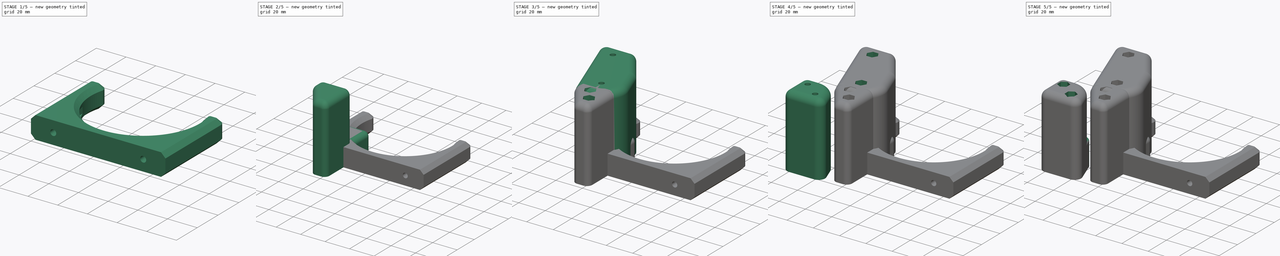
[diagram: build sequence overview — one tinted view per stage of 5, left to right]
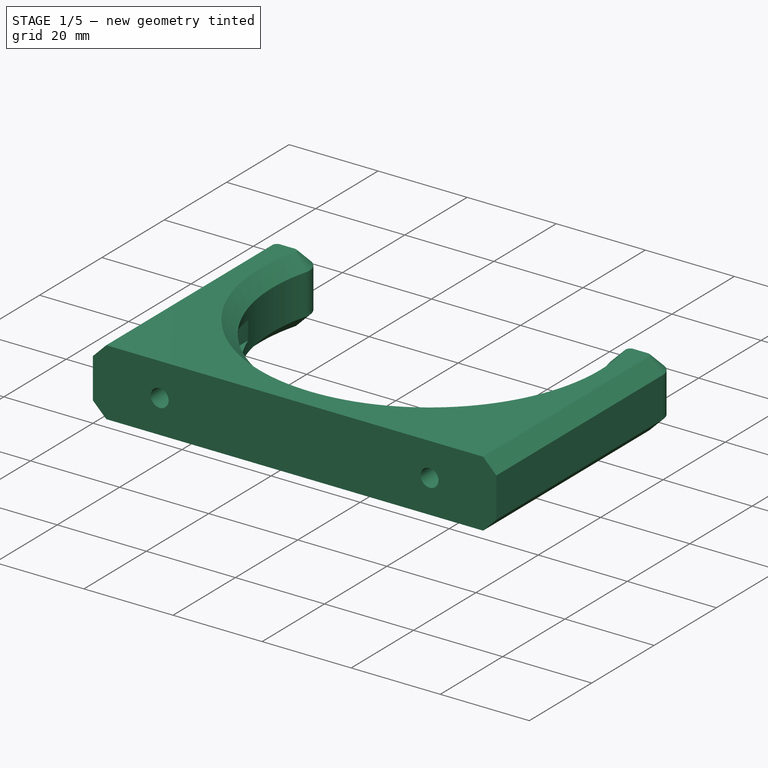
[diagram: stage 1 of 5 — iso view after this stage's code; geometry added in this stage tinted green]
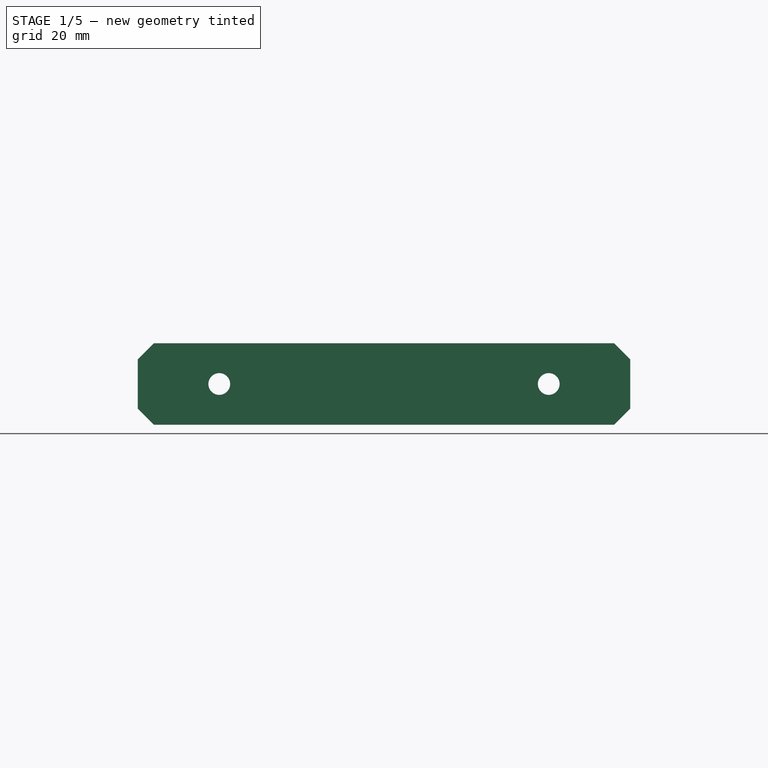
[diagram: stage 1 of 5 — front view after this stage's code; geometry added in this stage tinted green]
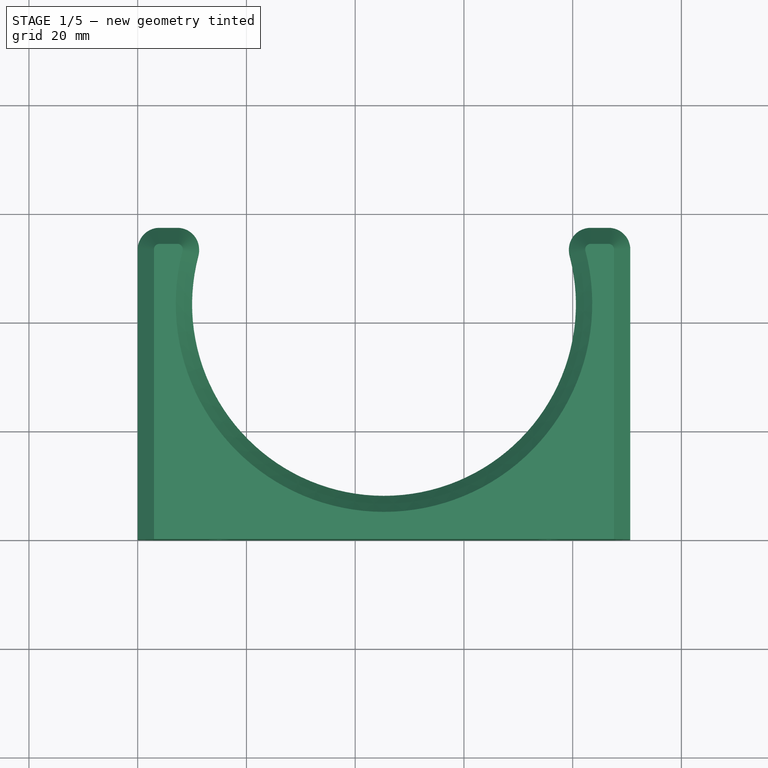
[diagram: stage 1 of 5 — top view after this stage's code; geometry added in this stage tinted green]
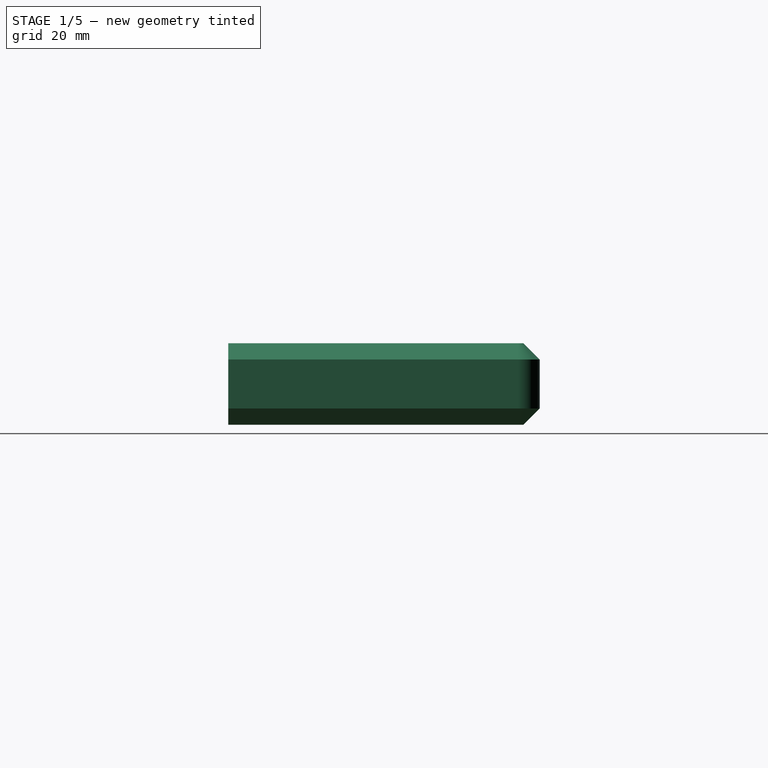
[diagram: stage 1 of 5 — right view after this stage's code; geometry added in this stage tinted green]
FCSTD DOCUMENT  (FreeCAD 0.21R33771 (Git))
Label: Hilti TE 5 Inlay
License: All rights reserved
LicenseURL: https://en.wikipedia.org/wiki/All_rights_reserved
objects: Sketcher::SketchObject×15, PartDesign::Fillet×9, PartDesign::Pocket×6, PartDesign::Pad×5, PartDesign::Body×5, PartDesign::Hole×4, Spreadsheet::Sheet×1, PartDesign::Chamfer×1
note: 70 computed .brp shape members not serialized (recipe doc carries the construction recipe); baked Part::Feature solids carry a one-line shape summary decoded from their .brp

FEATURE [PartDesign::Body] Body003  label="Top Body"
  Group = -> [Sketch008,Pad003,Sketch009,Pocket003,Sketch010,Sketch011,Fillet005,Fillet006,Fillet007,Hole002,Pocket004]
  Origin = -> Origin003
  Tip = -> Pocket004
FEATURE [Sketcher::SketchObject] Sketch012
  FullyConstrained = true
  MapMode = 5
  Support = -> [XY_Plane004]
  expr: Constraints[9] = <<data>>.dia
  sketch-geometry (16):
    g0: LineSegment StartX=0 StartY=0 StartZ=0 EndX=90.6 EndY=0 EndZ=0
    g1: LineSegment StartX=90.6 StartY=0 StartZ=0 EndX=90.6 EndY=57.3 EndZ=0
    g2: LineSegment StartX=90.6 StartY=57.3 StartZ=0 EndX=77.7051 EndY=57.3 EndZ=0
    g3: LineSegment StartX=0 StartY=57.3 StartZ=0 EndX=0 EndY=0 EndZ=0
    g4: ArcOfCircle CenterX=45.3 CenterY=43.3 CenterZ=0 NormalX=0 NormalY=0 NormalZ=1 AngleXU=0 Radius=35.3 StartAngle=2.73378 EndAngle=6.691
    g5: LineSegment StartX=45.3 StartY=43.3 StartZ=0 EndX=45.3 EndY=8 EndZ=0
    g6: LineSegment StartX=45.3 StartY=8 StartZ=0 EndX=45.3 EndY=0 EndZ=0
    g7: LineSegment StartX=45.3 StartY=43.3 StartZ=0 EndX=10 EndY=43.3 EndZ=0
    g8: LineSegment StartX=10 StartY=43.3 StartZ=0 EndX=0 EndY=43.3 EndZ=0
    g9: LineSegment StartX=45.3 StartY=43.3 StartZ=0 EndX=80.6 EndY=43.3 EndZ=0
    g10: LineSegment StartX=80.6 StartY=43.3 StartZ=0 EndX=90.6 EndY=43.3 EndZ=0
    g11: LineSegment StartX=0 StartY=0 StartZ=0 EndX=0 EndY=-8 EndZ=0
    g12: LineSegment StartX=45.3 StartY=0 StartZ=0 EndX=21.7543 EndY=0 EndZ=0
    g13: LineSegment StartX=45.3 StartY=0 StartZ=0 EndX=68.8457 EndY=0 EndZ=0
    g14: LineSegment StartX=68.8457 StartY=0 StartZ=0 EndX=68.8457 EndY=17 EndZ=0
    g15: LineSegment StartX=12.8949 StartY=57.3 StartZ=0 EndX=0 EndY=57.3 EndZ=0
  constraints (48):
    c: Coincident(g0,g1)
    c: Coincident(g1,g2)
    c: Coincident(g15,g3)
    c: Coincident(g3,g0)
    c: Horizontal(g0)
    c: Horizontal(g2)
    c: Vertical(g1)
    c: Vertical(g3)
    c: Coincident(g0,g-1)
    c: Diameter(g4) = 70.6
    c: Coincident(g5,g4)
    c: PointOnObject(g5,g4)
    c: Vertical(g5)
    c: Coincident(g5,g6)
    c: PointOnObject(g6,g0)
    c: Vertical(g6)
    c: Coincident(g7,g4)
    c: PointOnObject(g7,g4)
    c: Horizontal(g7)
    c: Coincident(g7,g8)
    c: PointOnObject(g8,g3)
    c: Coincident(g9,g4)
    c: PointOnObject(g9,g4)
    c: Horizontal(g9)
    c: Coincident(g9,g10)
    c: PointOnObject(g10,g1)
    c: Horizontal(g8)
    c: Horizontal(g10)
    c: Equal(g10,g8)
    c: Coincident(g11,g0)
    c: DistanceY(g11,g11) = 8
    c: Vertical(g11)
    c: Coincident(g12,g6)
    c: Coincident(g13,g6)
    c: Equal(g12,g13)
    c: Horizontal(g12)
    c: Horizontal(g13)
    c: Coincident(g14,g13)
    c: PointOnObject(g14,g4)
    c: Vertical(g14)
    c: DistanceY(g11,g14) = 25
    c: DistanceX(g8,g8) = 10
    c: DistanceY(g6,g6) = 8
    c: DistanceY(g10,g1) = 14
    c: Coincident(g2,g4)
    c: Coincident(g15,g4)
    c: Horizontal(g15)
    c: Equal(g3,g1)
FEATURE [PartDesign::Pad] Pad004
  Direction = (0,0,1)
  Length = 15
  Length2 = 10
  Profile = -> Sketch012
  ReferenceAxis = -> Sketch012 [N_Axis]
  Type = 0
FEATURE [Sketcher::SketchObject] Sketch013
  ExternalGeometry = -> [Pad004]
  FullyConstrained = true
  MapMode = 5
  Placement = pos=(0,0,0) rot=(1,0,0;1.5708rad)
  Support = -> [Pad004]
  sketch-geometry (7):
    g0: Circle CenterX=15 CenterY=7.5 CenterZ=0 NormalX=0 NormalY=0 NormalZ=1 AngleXU=0 Radius=2
    g1: Circle CenterX=75.6 CenterY=7.5 CenterZ=0 NormalX=0 NormalY=0 NormalZ=1 AngleXU=0 Radius=2
    g2: LineSegment StartX=-1e-16 StartY=7.5 StartZ=0 EndX=15 EndY=7.5 EndZ=0
    g3: LineSegment StartX=15 StartY=7.5 StartZ=0 EndX=75.6 EndY=7.5 EndZ=0
    g4: LineSegment StartX=75.6 StartY=7.5 StartZ=0 EndX=90.6 EndY=7.5 EndZ=0
    g5: LineSegment StartX=90.6 StartY=0 StartZ=0 EndX=90.6 EndY=7.5 EndZ=0
    g6: LineSegment StartX=90.6 StartY=7.5 StartZ=0 EndX=90.6 EndY=15 EndZ=0
  constraints (18):
    c: Equal(g0,g1)
    c: PointOnObject(g2,g-2)
    c: Coincident(g2,g0)
    c: Horizontal(g2)
    c: Coincident(g2,g3)
    c: Coincident(g3,g1)
    c: Horizontal(g3)
    c: Coincident(g3,g4)
    c: PointOnObject(g4,g-3)
    c: Horizontal(g4)
    c: Equal(g2,g4)
    c: Coincident(g-3,g5)
    c: Coincident(g5,g6)
    c: Coincident(g6,g-3)
    c: Coincident(g5,g4)
    c: Equal(g6,g5)
    c: Diameter(g0) = 4
    c: DistanceX(g2,g2) = 15
FEATURE [PartDesign::Fillet] Fillet008
  Base = -> Pad004 [Edge14,Edge11,Edge8,Edge5]
  BaseFeature = -> Pad004
  Radius = 4
  SupportTransform = false
  UseAllEdges = false
FEATURE [PartDesign::Chamfer] Chamfer
  Angle = 45
  Base = -> Fillet008 [Edge19,Edge21,Edge23,Edge24,Edge22,Edge20,Edge18,Edge15,Edge4,Edge1,Edge5,Edge7,Edge9,Edge11,Edge13,Edge12,Edge10,Edge8]
  BaseFeature = -> Fillet008
  ChamferType = 0
  FlipDirection = false
  Size = 3
  Size2 = 1
  SupportTransform = false
  UseAllEdges = false
FEATURE [PartDesign::Hole] Hole003
  BaseFeature = -> Chamfer
  CustomThreadClearance = 0
  Depth = 35
  DepthType = 0
  Diameter = 4
  DrillForDepth = false
  DrillPoint = 1
  DrillPointAngle = 118
  HoleCutCountersinkAngle = 90
  HoleCutCustomValues = false
  HoleCutDepth = 0
  HoleCutDiameter = 6.1
  HoleCutType = 0
  ModelThread = false
  Profile = -> Sketch013
  Tapered = false
  TaperedAngle = 90
  ThreadClass = 0
  ThreadDepth = 35
  ThreadDepthType = 0
  ThreadDirection = 0
  ThreadFit = 0
  ThreadSize = 0
  ThreadType = 0
  Threaded = false
  UseCustomThreadClearance = false
FEATURE [Sketcher::SketchObject] Sketch014
  ExternalGeometry = -> [Hole003]
  FullyConstrained = true
  MapMode = 5
  Placement = pos=(0,0,0) rot=(1,0,0;1.5708rad)
  Support = -> [XZ_Plane004]
  expr: Constraints[39] = <<data>>.hex
  sketch-geometry (14):
    g0: LineSegment StartX=18.6 StartY=9.57846 StartZ=0 EndX=15 EndY=11.6569 EndZ=0
    g1: LineSegment StartX=15 StartY=11.6569 StartZ=0 EndX=11.4 EndY=9.57846 EndZ=0
    g2: LineSegment StartX=11.4 StartY=9.57846 StartZ=0 EndX=11.4 EndY=5.42154 EndZ=0
    g3: LineSegment StartX=11.4 StartY=5.42154 StartZ=0 EndX=15 EndY=3.34308 EndZ=0
    g4: LineSegment StartX=15 StartY=3.34308 StartZ=0 EndX=18.6 EndY=5.42154 EndZ=0
    g5: LineSegment StartX=18.6 StartY=5.42154 StartZ=0 EndX=18.6 EndY=9.57846 EndZ=0
    g6: Circle CenterX=15 CenterY=7.5 CenterZ=0 NormalX=0 NormalY=0 NormalZ=1 AngleXU=0 Radius=4.15692
    g7: LineSegment StartX=79.2 StartY=9.57846 StartZ=0 EndX=75.6 EndY=11.6569 EndZ=0
    g8: LineSegment StartX=75.6 StartY=11.6569 StartZ=0 EndX=72 EndY=9.57846 EndZ=0
    g9: LineSegment StartX=72 StartY=9.57846 StartZ=0 EndX=72 EndY=5.42154 EndZ=0
    g10: LineSegment StartX=72 StartY=5.42154 StartZ=0 EndX=75.6 EndY=3.34308 EndZ=0
    g11: LineSegment StartX=75.6 StartY=3.34308 StartZ=0 EndX=79.2 EndY=5.42154 EndZ=0
    g12: LineSegment StartX=79.2 StartY=5.42154 StartZ=0 EndX=79.2 EndY=9.57846 EndZ=0
    g13: Circle CenterX=75.6 CenterY=7.5 CenterZ=0 NormalX=0 NormalY=0 NormalZ=1 AngleXU=0 Radius=4.15692
  constraints (32):
    c: Coincident(g0,g1)
    c: Coincident(g1,g2)
    c: Coincident(g2,g3)
    c: Coincident(g3,g4)
    c: Coincident(g4,g5)
    c: Coincident(g5,g0)
    c: Equal(g0, g1-g5) x5
    c: PointOnObject(g0,g6)
    c: PointOnObject(g1,g6)
    c: PointOnObject(g2,g6)
    c: PointOnObject(g3,g6)
    c: PointOnObject(g4,g6)
    c: PointOnObject(g5,g6)
    c: Coincident(g6,g-4)
    c: Coincident(g7,g8)
    c: Coincident(g8,g9)
    c: Coincident(g9,g10)
    c: Coincident(g10,g11)
    c: Coincident(g11,g12)
    c: Coincident(g12,g7)
    c: Equal(g7, g8-g12) x5
    c: PointOnObject(g7,g13)
    c: PointOnObject(g8,g13)
    c: PointOnObject(g9,g13)
    c: PointOnObject(g10,g13)
    c: PointOnObject(g11,g13)
    c: PointOnObject(g12,g13)
    c: Coincident(g13,g-3)
    c: Equal(g1,g8)
    c: Vertical(g2)
    c: Vertical(g9)
    c: DistanceX(g8,g7) = 7.2
FEATURE [PartDesign::Pocket] Pocket005
  BaseFeature = -> Hole003
  Direction = (0,1,2e-16)
  Length = 35
  Length2 = -7
  Profile = -> Sketch014
  ReferenceAxis = -> Sketch014 [N_Axis]
  Type = 4
FEATURE [PartDesign::Body] Body004  label="Clamp Body"
  Group = -> [Sketch012,Pad004,Sketch013,Fillet008,Chamfer,Hole003,Sketch014,Pocket005]
  Origin = -> Origin004
  Tip = -> Pocket005
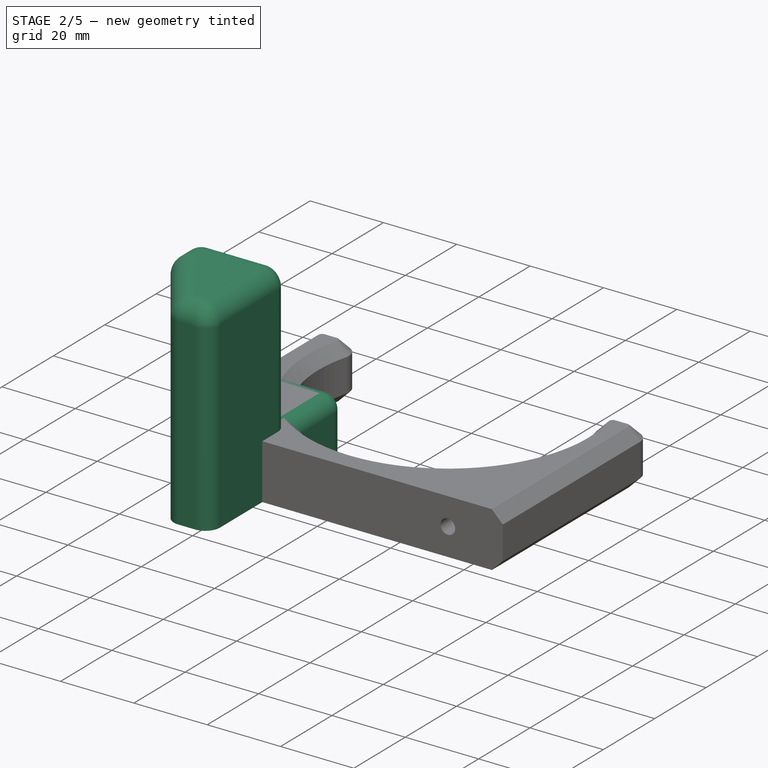
[diagram: stage 2 of 5 — iso view after this stage's code; geometry added in this stage tinted green]
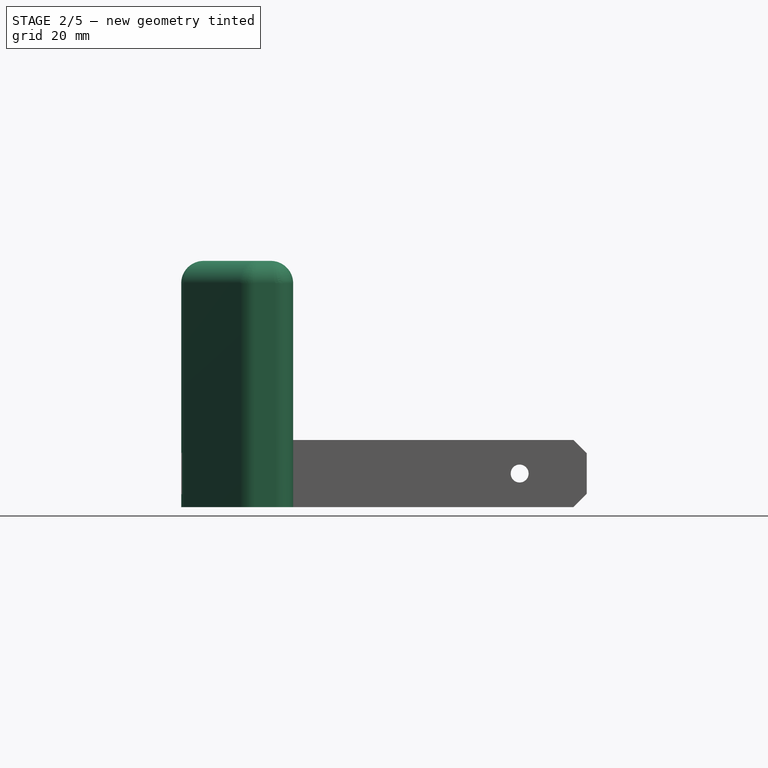
[diagram: stage 2 of 5 — front view after this stage's code; geometry added in this stage tinted green]
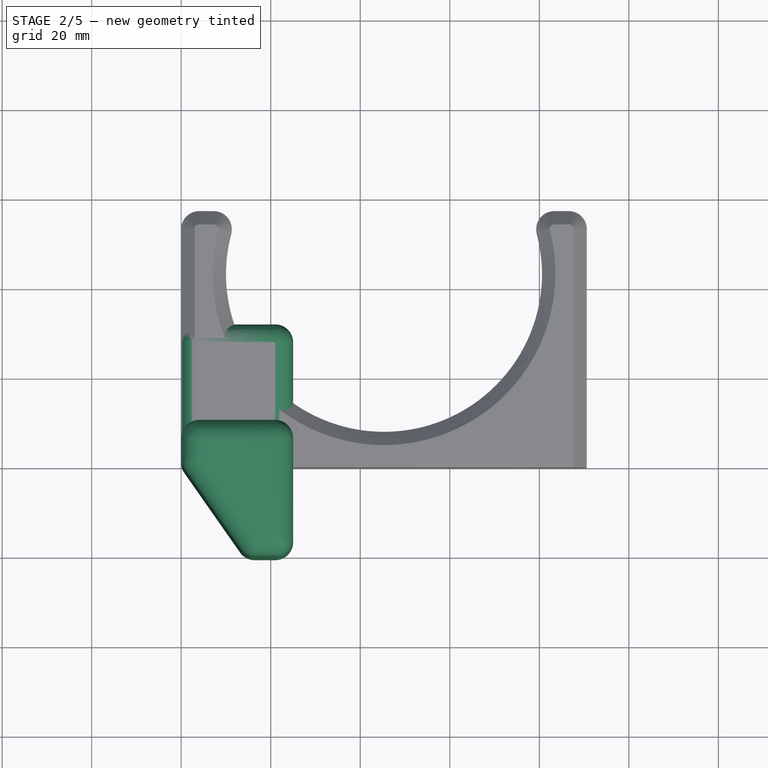
[diagram: stage 2 of 5 — top view after this stage's code; geometry added in this stage tinted green]
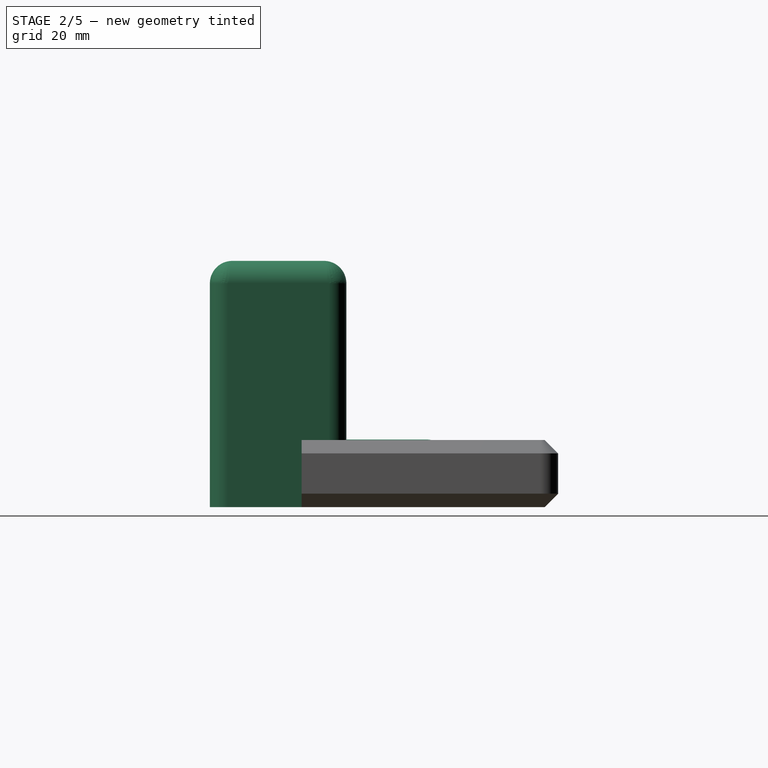
[diagram: stage 2 of 5 — right view after this stage's code; geometry added in this stage tinted green]
FEATURE [PartDesign::Body] Body001  label="Inner Body"
  Group = -> [Sketch001,Pad001,Fillet002,Sketch006,Pocket001,Sketch007,Pocket002]
  Origin = -> Origin001
  Tip = -> Pocket002
FEATURE [Sketcher::SketchObject] Sketch008
  FullyConstrained = true
  MapMode = 5
  Support = -> [XY_Plane003]
  sketch-geometry (5):
    g0: LineSegment StartX=0 StartY=0 StartZ=0 EndX=0 EndY=32 EndZ=0
    g1: LineSegment StartX=0 StartY=32 StartZ=0 EndX=25 EndY=32 EndZ=0
    g2: LineSegment StartX=25 StartY=32 StartZ=0 EndX=25 EndY=-20.4788 EndZ=0
    g3: LineSegment StartX=25 StartY=-20.4788 StartZ=0 EndX=14.3394 EndY=-20.4788 EndZ=0
    g4: LineSegment StartX=14.3394 StartY=-20.4788 StartZ=0 EndX=0 EndY=0 EndZ=0
  constraints (14):
    c: Coincident(g-1,g0)
    c: PointOnObject(g0,g-2)
    c: Coincident(g0,g1)
    c: Horizontal(g1)
    c: Coincident(g1,g2)
    c: Vertical(g2)
    c: Coincident(g2,g3)
    c: Horizontal(g3)
    c: Coincident(g3,g4)
    c: Coincident(g4,g0)
    c: DistanceY(g0,g0) = 32
    c: DistanceX(g1,g1) = 25
    c: Angle(g4,g1) = 0.959931
    c: Distance(g4) = 25
FEATURE [PartDesign::Pad] Pad003
  Direction = (0,0,1)
  Length = 55
  Length2 = 10
  Profile = -> Sketch008
  ReferenceAxis = -> Sketch008 [N_Axis]
  Type = 0
  expr: Length = <<data>>.height
FEATURE [Sketcher::SketchObject] Sketch009
  FullyConstrained = true
  MapMode = 5
  Support = -> [XY_Plane003]
  sketch-geometry (4):
    g0: LineSegment StartX=-10 StartY=10 StartZ=0 EndX=30 EndY=10 EndZ=0
    g1: LineSegment StartX=30 StartY=10 StartZ=0 EndX=30 EndY=50 EndZ=0
    g2: LineSegment StartX=30 StartY=50 StartZ=0 EndX=-10 EndY=50 EndZ=0
    g3: LineSegment StartX=-10 StartY=50 StartZ=0 EndX=-10 EndY=10 EndZ=0
  constraints (12):
    c: Coincident(g0,g1)
    c: Coincident(g1,g2)
    c: Coincident(g2,g3)
    c: Coincident(g3,g0)
    c: Horizontal(g0)
    c: Horizontal(g2)
    c: Vertical(g1)
    c: Vertical(g3)
    c: DistanceY(g-1,g0) = 10
    c: DistanceX(g0,g-1) = 10
    c: DistanceX(g0,g0) = 40
    c: Equal(g1,g0)
FEATURE [PartDesign::Pocket] Pocket003
  BaseFeature = -> Pad003
  Direction = (0,0,-1)
  Length = 82.5
  Length2 = -15.1
  Profile = -> Sketch009
  ReferenceAxis = -> Sketch009 [N_Axis]
  Reversed = true
  Type = 4
  expr: Length = <<data>>.height * 1.5
  expr: Length2 = -(59.6 - 44.5)
FEATURE [Sketcher::SketchObject] Sketch010
  FullyConstrained = true
  MapMode = 5
  Support = -> [XY_Plane003]
  sketch-geometry (2):
    g0: Circle CenterX=18 CenterY=-10 CenterZ=0 NormalX=0 NormalY=0 NormalZ=1 AngleXU=0 Radius=2
    g1: Circle CenterX=12 CenterY=0 CenterZ=0 NormalX=0 NormalY=0 NormalZ=1 AngleXU=0 Radius=2
  constraints (6):
    c: Equal(g1,g0)
    c: Diameter(g0) = 4
    c: DistanceY(g1,g-1) = 0
    c: DistanceX(g-1,g0) = 18
    c: DistanceX(g-1,g1) = 12
    c: DistanceY(g0,g-1) = 10
FEATURE [PartDesign::Fillet] Fillet005
  Base = -> Pocket003 [Face6]
  BaseFeature = -> Pocket003
  Radius = 5
  SupportTransform = false
  UseAllEdges = false
FEATURE [PartDesign::Fillet] Fillet006
  Base = -> Fillet005 [Edge5,Edge15,Edge24,Edge9,Edge19,Edge1,Edge4]
  BaseFeature = -> Fillet005
  Radius = 4
  SupportTransform = false
  UseAllEdges = false
FEATURE [PartDesign::Fillet] Fillet007
  Base = -> Fillet006 [Edge7,Edge25,Edge26,Edge27,Edge29,Vertex6,Edge5,Edge31]
  BaseFeature = -> Fillet006
  Radius = 4
  SupportTransform = false
  UseAllEdges = false
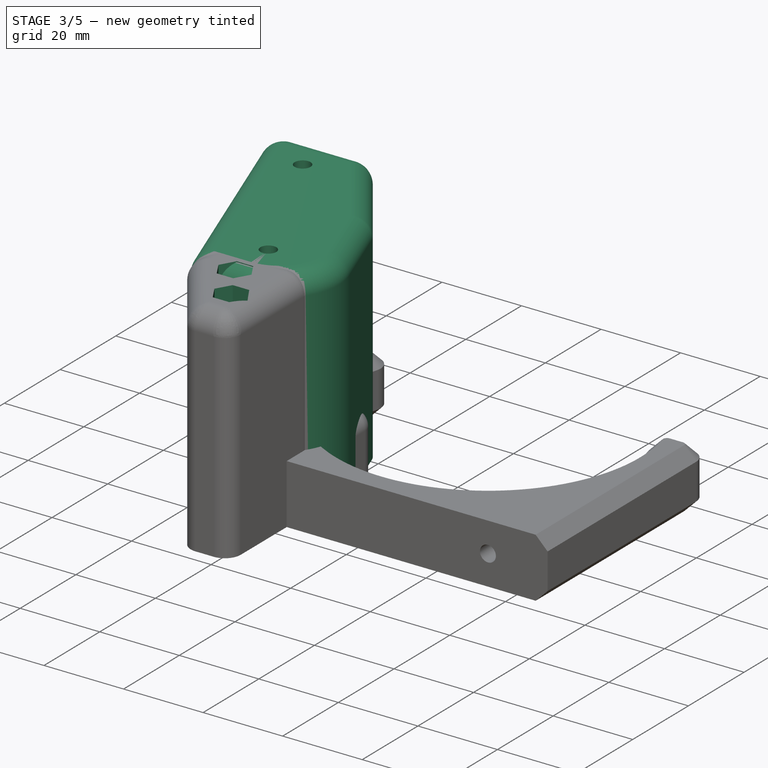
[diagram: stage 3 of 5 — iso view after this stage's code; geometry added in this stage tinted green]
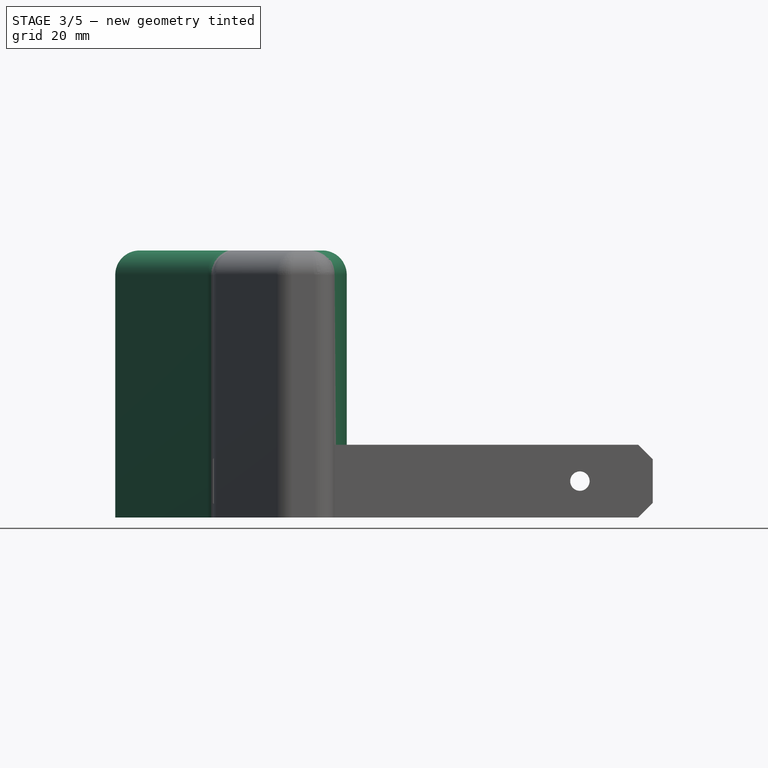
[diagram: stage 3 of 5 — front view after this stage's code; geometry added in this stage tinted green]
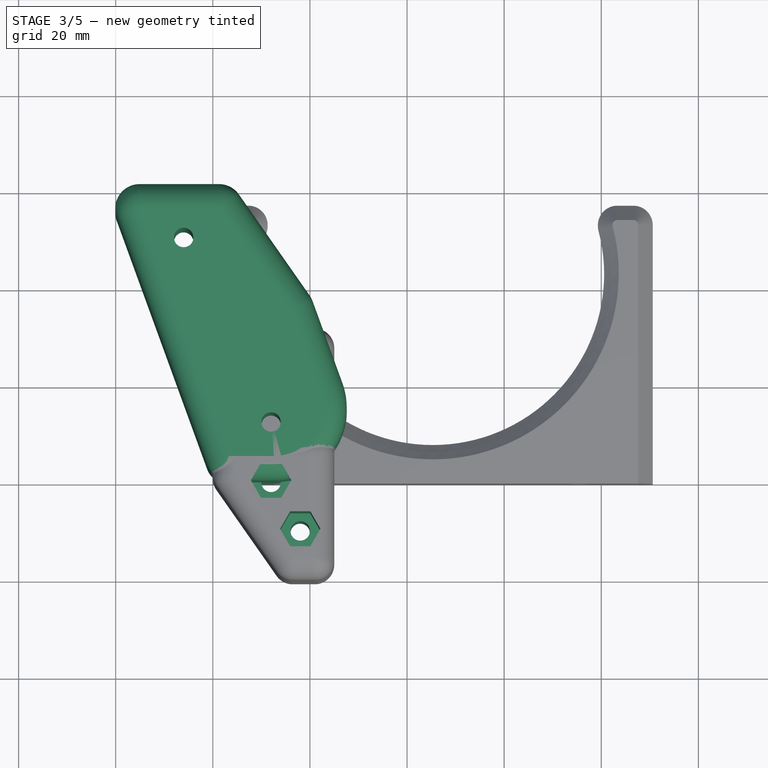
[diagram: stage 3 of 5 — top view after this stage's code; geometry added in this stage tinted green]
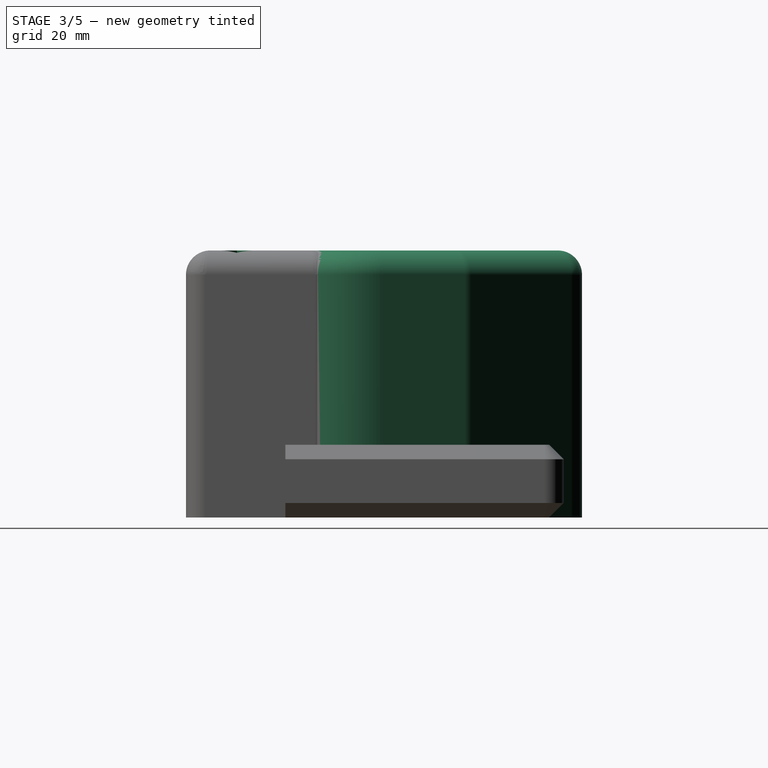
[diagram: stage 3 of 5 — right view after this stage's code; geometry added in this stage tinted green]
FEATURE [Sketcher::SketchObject] Sketch001
  FullyConstrained = true
  MapMode = 5
  Support = -> [XY_Plane001]
  sketch-geometry (7):
    g0: LineSegment StartX=0 StartY=0 StartZ=0 EndX=-22.2313 EndY=61.08 EndZ=0
    g1: LineSegment StartX=-22.2313 StartY=61.08 StartZ=0 EndX=3.8697 EndY=61.08 EndZ=0
    g2: LineSegment StartX=3.8697 StartY=61.08 StartZ=0 EndX=20.3192 EndY=37.5877 EndZ=0
    g3: LineSegment StartX=20.3192 StartY=37.5877 StartZ=0 EndX=26.6732 EndY=20.1303 EndZ=0
    g4: LineSegment StartX=12.5778 StartY=9.334e-13 StartZ=0 EndX=0 EndY=0 EndZ=0
    g5: ArcOfCircle CenterX=12.5778 CenterY=15 CenterZ=0 NormalX=0 NormalY=0 NormalZ=1 AngleXU=0 Radius=15 StartAngle=4.71239 EndAngle=6.63225
    g6: GeomPoint X=34 Y=0 Z=0
  constraints (18):
    c: Coincident(g-1,g0)
    c: Coincident(g0,g1)
    c: Horizontal(g1)
    c: Coincident(g1,g2)
    c: Coincident(g2,g3)
    c: PointOnObject(g6,g-1)
    c: Coincident(g4,g0)
    c: Angle(g4,g0) = 1.91986
    c: DistanceX(g4,g6) = 34
    c: Distance(g3,g6) = 40
    c: Distance(g0) = 65
    c: Parallel(g0,g3)
    c: Angle(g1,g2) = 2.18166
    c: PointOnObject(g6,g3)
    c: PointOnObject(g6,g4)
    c: Tangent(g3,g5) = 1.5708
    c: Tangent(g4,g5) = 1.5708
    c: Radius(g5) = 15
FEATURE [Spreadsheet::Sheet] Spreadsheet  label="data"
  cells = A1='height; B1(height)==55 mm; A2='pad; B2(pad)==51.2 mm - 32 mm; A3='hex; B3(hex)==7.2 mm; A4='dia; B4(dia)==70.6 mm
FEATURE [PartDesign::Pad] Pad001
  Direction = (0,0,1)
  Length = 55
  Length2 = 10
  Profile = -> Sketch001
  ReferenceAxis = -> Sketch001 [N_Axis]
  Type = 0
  expr: Length = <<data>>.height
FEATURE [PartDesign::Fillet] Fillet002
  Base = -> Pad001 [Edge8,Edge1,Edge5,Edge2,Face8]
  BaseFeature = -> Pad001
  Radius = 5
  SupportTransform = false
  UseAllEdges = false
FEATURE [PartDesign::Body] Body  label="Left Body"
  Group = -> [Sketch,Pad,Fillet,Fillet001,Sketch004,Hole001,Sketch005,Pocket]
  Origin = -> Origin
  Tip = -> Pocket
FEATURE [Sketcher::SketchObject] Sketch006
  FullyConstrained = true
  MapMode = 5
  Support = -> [XY_Plane001]
  sketch-geometry (2):
    g0: Circle CenterX=12 CenterY=12 CenterZ=0 NormalX=0 NormalY=0 NormalZ=1 AngleXU=0 Radius=2
    g1: Circle CenterX=-6 CenterY=50 CenterZ=0 NormalX=0 NormalY=0 NormalZ=1 AngleXU=0 Radius=2
  constraints (6):
    c: Equal(g1,g0)
    c: Diameter(g0) = 4
    c: DistanceX(g1,g-1) = 6
    c: DistanceX(g-1,g0) = 12
    c: DistanceY(g-1,g0) = 12
    c: DistanceY(g-1,g1) = 50
FEATURE [PartDesign::Pocket] Pocket001
  BaseFeature = -> Fillet002
  Direction = (0,0,-1)
  Length = 5
  Length2 = 5
  Profile = -> Sketch006
  ReferenceAxis = -> Sketch006 [N_Axis]
  Reversed = true
  Type = 1
FEATURE [PartDesign::Hole] Hole002
  BaseFeature = -> Fillet007
  CustomThreadClearance = 0
  Depth = 161.651
  DepthType = 1
  Diameter = 4
  DrillForDepth = false
  DrillPoint = 1
  DrillPointAngle = 118
  HoleCutCountersinkAngle = 90
  HoleCutCustomValues = false
  HoleCutDepth = 0
  HoleCutDiameter = 6.1
  HoleCutType = 0
  ModelThread = false
  Profile = -> Sketch010
  Reversed = true
  Tapered = false
  TaperedAngle = 90
  ThreadClass = 0
  ThreadDepth = 161.651
  ThreadDepthType = 0
  ThreadDirection = 0
  ThreadFit = 0
  ThreadSize = 0
  ThreadType = 0
  Threaded = false
  UseCustomThreadClearance = false
FEATURE [Sketcher::SketchObject] Sketch011
  ExternalGeometry = -> [Hole002]
  FullyConstrained = true
  MapMode = 5
  Support = -> [XY_Plane003]
  expr: Constraints[37] = <<data>>.hex
  sketch-geometry (14):
    g0: LineSegment StartX=20.0785 StartY=-6.4 StartZ=0 EndX=15.9215 EndY=-6.4 EndZ=0
    g1: LineSegment StartX=15.9215 StartY=-6.4 StartZ=0 EndX=13.8431 EndY=-10 EndZ=0
    g2: LineSegment StartX=13.8431 StartY=-10 StartZ=0 EndX=15.9215 EndY=-13.6 EndZ=0
    g3: LineSegment StartX=15.9215 StartY=-13.6 StartZ=0 EndX=20.0785 EndY=-13.6 EndZ=0
    g4: LineSegment StartX=20.0785 StartY=-13.6 StartZ=0 EndX=22.1569 EndY=-10 EndZ=0
    g5: LineSegment StartX=22.1569 StartY=-10 StartZ=0 EndX=20.0785 EndY=-6.4 EndZ=0
    g6: Circle CenterX=18 CenterY=-10 CenterZ=0 NormalX=0 NormalY=0 NormalZ=1 AngleXU=0 Radius=4.15692
    g7: LineSegment StartX=14.0785 StartY=3.6 StartZ=0 EndX=9.92154 EndY=3.6 EndZ=0
    g8: LineSegment StartX=9.92154 StartY=3.6 StartZ=0 EndX=7.84308 EndY=5.644e-13 EndZ=0
    g9: LineSegment StartX=7.84308 StartY=5.644e-13 StartZ=0 EndX=9.92154 EndY=-3.6 EndZ=0
    g10: LineSegment StartX=9.92154 StartY=-3.6 StartZ=0 EndX=14.0785 EndY=-3.6 EndZ=0
    g11: LineSegment StartX=14.0785 StartY=-3.6 StartZ=0 EndX=16.1569 EndY=5.635e-13 EndZ=0
    g12: LineSegment StartX=16.1569 StartY=5.635e-13 StartZ=0 EndX=14.0785 EndY=3.6 EndZ=0
    g13: Circle CenterX=12 CenterY=0 CenterZ=0 NormalX=0 NormalY=0 NormalZ=1 AngleXU=0 Radius=4.15692
  constraints (32):
    c: Coincident(g0,g1)
    c: Coincident(g1,g2)
    c: Coincident(g2,g3)
    c: Coincident(g3,g4)
    c: Coincident(g4,g5)
    c: Coincident(g5,g0)
    c: Equal(g0, g1-g5) x5
    c: PointOnObject(g0,g6)
    c: PointOnObject(g1,g6)
    c: PointOnObject(g2,g6)
    c: PointOnObject(g3,g6)
    c: PointOnObject(g4,g6)
    c: PointOnObject(g5,g6)
    c: Coincident(g7,g8)
    c: Coincident(g8,g9)
    c: Coincident(g9,g10)
    c: Coincident(g10,g11)
    c: Coincident(g11,g12)
    c: Coincident(g12,g7)
    c: Equal(g7, g8-g12) x5
    c: PointOnObject(g7,g13)
    c: PointOnObject(g8,g13)
    c: PointOnObject(g9,g13)
    c: PointOnObject(g10,g13)
    c: PointOnObject(g11,g13)
    c: PointOnObject(g12,g13)
    c: Horizontal(g3)
    c: Horizontal(g10)
    c: Equal(g10,g3)
    c: DistanceY(g3,g0) = 7.2
    c: Coincident(g6,g-3)
    c: Coincident(g13,g-4)
FEATURE [PartDesign::Pocket] Pocket004
  BaseFeature = -> Hole002
  Direction = (0,0,-1)
  Length = 60
  Length2 = -30
  Profile = -> Sketch011
  ReferenceAxis = -> Sketch011 [N_Axis]
  Reversed = true
  Type = 4
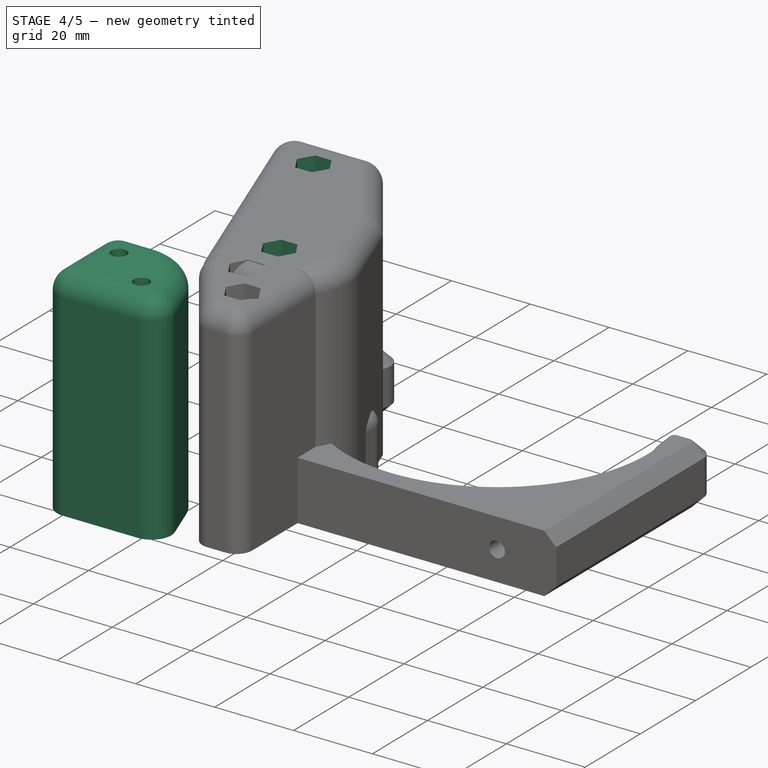
[diagram: stage 4 of 5 — iso view after this stage's code; geometry added in this stage tinted green]
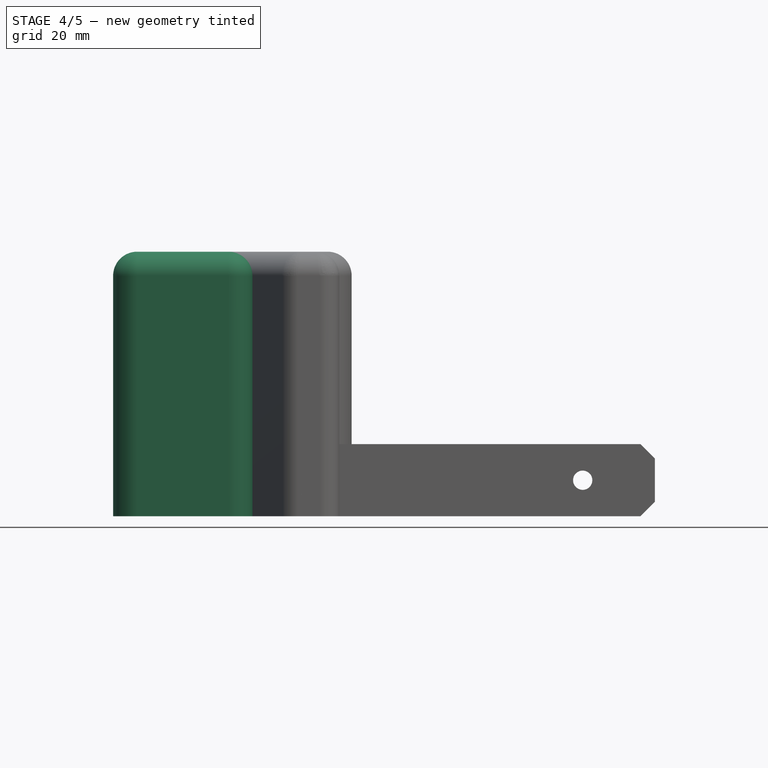
[diagram: stage 4 of 5 — front view after this stage's code; geometry added in this stage tinted green]
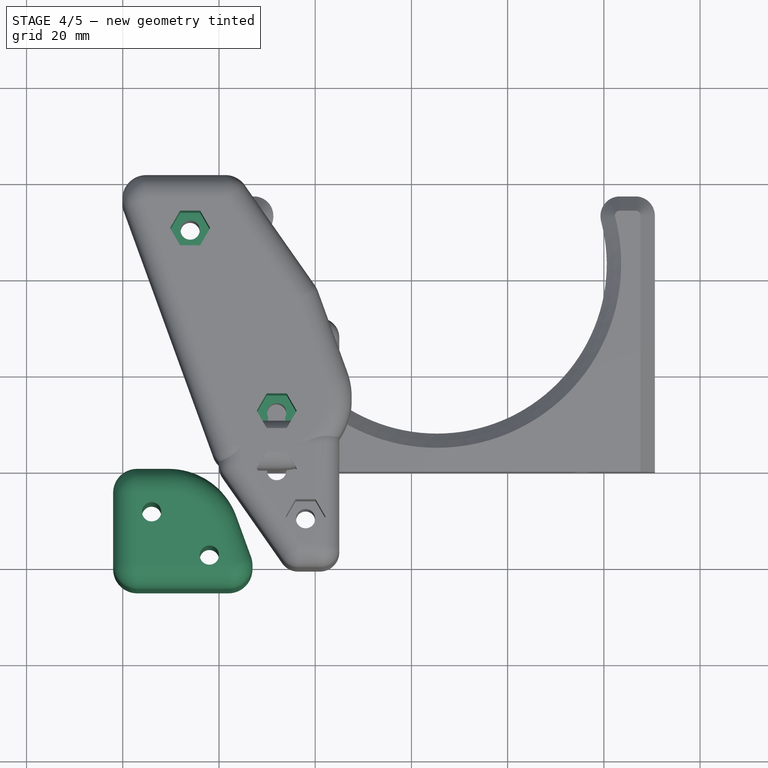
[diagram: stage 4 of 5 — top view after this stage's code; geometry added in this stage tinted green]
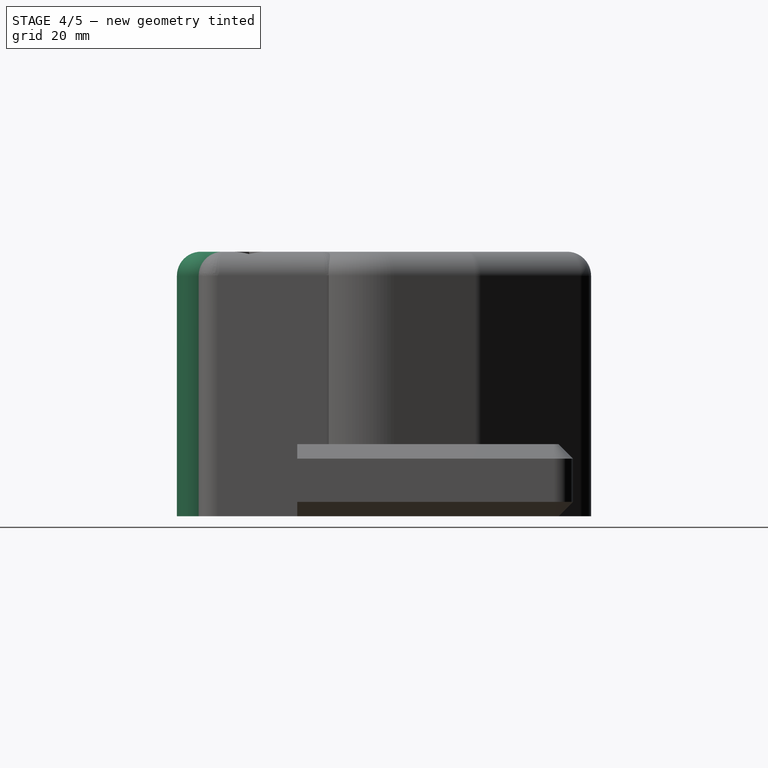
[diagram: stage 4 of 5 — right view after this stage's code; geometry added in this stage tinted green]
FEATURE [Sketcher::SketchObject] Sketch
  FullyConstrained = true
  MapMode = 5
  Support = -> [XY_Plane]
  sketch-geometry (6):
    g0: LineSegment StartX=-10.5031 StartY=-4.62e-14 StartZ=0 EndX=-22 EndY=0 EndZ=0
    g1: LineSegment StartX=3.59228 StartY=-9.8697 StartZ=0 EndX=9.09926 EndY=-25 EndZ=0
    g2: LineSegment StartX=-22 StartY=0 StartZ=0 EndX=-22 EndY=-25 EndZ=0
    g3: LineSegment StartX=-22 StartY=-25 StartZ=0 EndX=9.09926 EndY=-25 EndZ=0
    g4: ArcOfCircle CenterX=-10.5031 CenterY=-15 CenterZ=0 NormalX=0 NormalY=0 NormalZ=1 AngleXU=0 Radius=15 StartAngle=0.349066 EndAngle=1.5708
    g5: GeomPoint X=0 Y=0 Z=0
  constraints (15):
    c: Coincident(g5,g-1)
    c: PointOnObject(g0,g-1)
    c: Coincident(g2,g0)
    c: Vertical(g2)
    c: Coincident(g3,g1)
    c: Coincident(g3,g2)
    c: Horizontal(g3)
    c: DistanceX(g0,g5) = 22
    c: DistanceY(g2,g2) = 25
    c: PointOnObject(g5,g0)
    c: PointOnObject(g5,g1)
    c: Tangent(g0,g4) = -1.5708
    c: Tangent(g1,g4) = 1.5708
    c: Radius(g4) = 15
    c: Angle(g0,g1) = 1.91986
FEATURE [PartDesign::Pad] Pad
  Direction = (0,0,1)
  Length = 55
  Length2 = 10
  Profile = -> Sketch
  ReferenceAxis = -> Sketch [N_Axis]
  Type = 0
  expr: Length = <<data>>.height
FEATURE [PartDesign::Fillet] Fillet
  Base = -> Pad [Edge11,Edge8,Edge5]
  BaseFeature = -> Pad
  Radius = 5
  SupportTransform = false
  UseAllEdges = false
FEATURE [PartDesign::Fillet] Fillet001
  Base = -> Fillet [Face5]
  BaseFeature = -> Fillet
  Radius = 5
  SupportTransform = false
  UseAllEdges = false
FEATURE [PartDesign::Body] Body002  label="Pad Body"
  Group = -> [Sketch002,Pad002,Fillet003,Fillet004,Sketch003,Hole]
  Origin = -> Origin002
  Tip = -> Hole
FEATURE [Sketcher::SketchObject] Sketch004
  FullyConstrained = true
  MapMode = 5
  Support = -> [XY_Plane]
  sketch-geometry (2):
    g0: Circle CenterX=-2 CenterY=-18 CenterZ=0 NormalX=0 NormalY=0 NormalZ=1 AngleXU=0 Radius=2
    g1: Circle CenterX=-14 CenterY=-9 CenterZ=0 NormalX=0 NormalY=0 NormalZ=1 AngleXU=0 Radius=2
  constraints (6):
    c: Equal(g0,g1)
    c: Distance(g1,g0) = 15
    c: DistanceX(g0,g-1) = 2
    c: DistanceX(g1,g-1) = 14
    c: Diameter(g0) = 4
    c: DistanceY(g0,g-1) = 18
FEATURE [PartDesign::Hole] Hole001
  BaseFeature = -> Fillet001
  CustomThreadClearance = 0
  Depth = 135.308
  DepthType = 1
  Diameter = 4
  DrillForDepth = false
  DrillPoint = 1
  DrillPointAngle = 118
  HoleCutCountersinkAngle = 90
  HoleCutCustomValues = false
  HoleCutDepth = 0
  HoleCutDiameter = 6.1
  HoleCutType = 0
  ModelThread = false
  Profile = -> Sketch004
  Reversed = true
  Tapered = false
  TaperedAngle = 90
  ThreadClass = 0
  ThreadDepth = 135.308
  ThreadDepthType = 0
  ThreadDirection = 0
  ThreadFit = 0
  ThreadSize = 0
  ThreadType = 0
  Threaded = false
  UseCustomThreadClearance = false
FEATURE [Sketcher::SketchObject] Sketch007
  ExternalGeometry = -> [Pocket001]
  FullyConstrained = true
  MapMode = 5
  Support = -> [XY_Plane001]
  expr: Constraints[39] = <<data>>.hex
  sketch-geometry (14):
    g0: LineSegment StartX=14.0785 StartY=15.6 StartZ=0 EndX=9.92154 EndY=15.6 EndZ=0
    g1: LineSegment StartX=9.92154 StartY=15.6 StartZ=0 EndX=7.84308 EndY=12 EndZ=0
    g2: LineSegment StartX=7.84308 StartY=12 StartZ=0 EndX=9.92154 EndY=8.4 EndZ=0
    g3: LineSegment StartX=9.92154 StartY=8.4 StartZ=0 EndX=14.0785 EndY=8.4 EndZ=0
    g4: LineSegment StartX=14.0785 StartY=8.4 StartZ=0 EndX=16.1569 EndY=12 EndZ=0
    g5: LineSegment StartX=16.1569 StartY=12 StartZ=0 EndX=14.0785 EndY=15.6 EndZ=0
    g6: Circle CenterX=12 CenterY=12 CenterZ=0 NormalX=0 NormalY=0 NormalZ=1 AngleXU=0 Radius=4.15692
    g7: LineSegment StartX=-1.84308 StartY=50 StartZ=0 EndX=-3.92154 EndY=53.6 EndZ=0
    g8: LineSegment StartX=-3.92154 StartY=53.6 StartZ=0 EndX=-8.07846 EndY=53.6 EndZ=0
    g9: LineSegment StartX=-8.07846 StartY=53.6 StartZ=0 EndX=-10.1569 EndY=50 EndZ=0
    g10: LineSegment StartX=-10.1569 StartY=50 StartZ=0 EndX=-8.07846 EndY=46.4 EndZ=0
    g11: LineSegment StartX=-8.07846 StartY=46.4 StartZ=0 EndX=-3.92154 EndY=46.4 EndZ=0
    g12: LineSegment StartX=-3.92154 StartY=46.4 StartZ=0 EndX=-1.84308 EndY=50 EndZ=0
    g13: Circle CenterX=-6 CenterY=50 CenterZ=0 NormalX=0 NormalY=0 NormalZ=1 AngleXU=0 Radius=4.15692
  constraints (32):
    c: Coincident(g0,g1)
    c: Coincident(g1,g2)
    c: Coincident(g2,g3)
    c: Coincident(g3,g4)
    c: Coincident(g4,g5)
    c: Coincident(g5,g0)
    c: Equal(g0, g1-g5) x5
    c: PointOnObject(g0,g6)
    c: PointOnObject(g1,g6)
    c: PointOnObject(g2,g6)
    c: PointOnObject(g3,g6)
    c: PointOnObject(g4,g6)
    c: PointOnObject(g5,g6)
    c: Coincident(g6,g-3)
    c: Coincident(g7,g8)
    c: Coincident(g8,g9)
    c: Coincident(g9,g10)
    c: Coincident(g10,g11)
    c: Coincident(g11,g12)
    c: Coincident(g12,g7)
    c: Equal(g7, g8-g12) x5
    c: PointOnObject(g7,g13)
    c: PointOnObject(g8,g13)
    c: PointOnObject(g9,g13)
    c: PointOnObject(g10,g13)
    c: PointOnObject(g11,g13)
    c: PointOnObject(g12,g13)
    c: Coincident(g13,g-4)
    c: Horizontal(g3)
    c: Horizontal(g8)
    c: Equal(g3,g11)
    c: DistanceY(g2,g0) = 7.2
FEATURE [PartDesign::Pocket] Pocket002
  BaseFeature = -> Pocket001
  Direction = (0,0,-1)
  Length = 100
  Length2 = -30
  Profile = -> Sketch007
  ReferenceAxis = -> Sketch007 [N_Axis]
  Reversed = true
  Type = 4
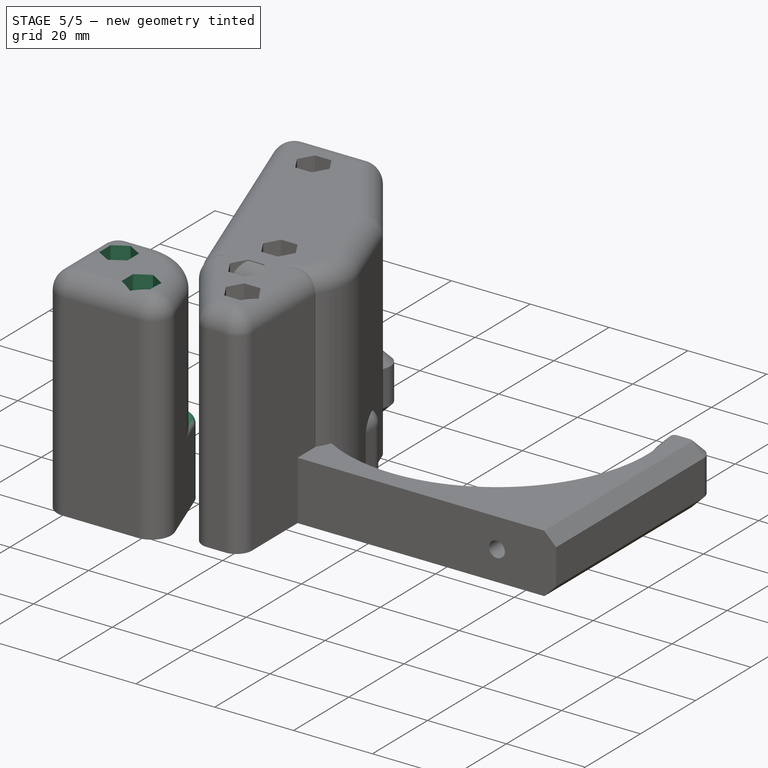
[diagram: stage 5 of 5 — iso view after this stage's code; geometry added in this stage tinted green]
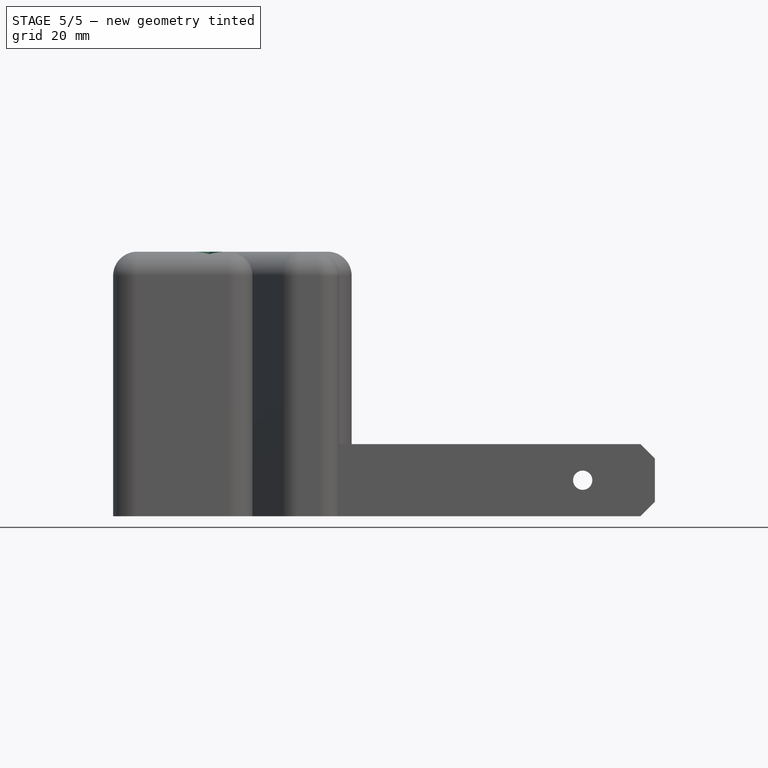
[diagram: stage 5 of 5 — front view after this stage's code; geometry added in this stage tinted green]
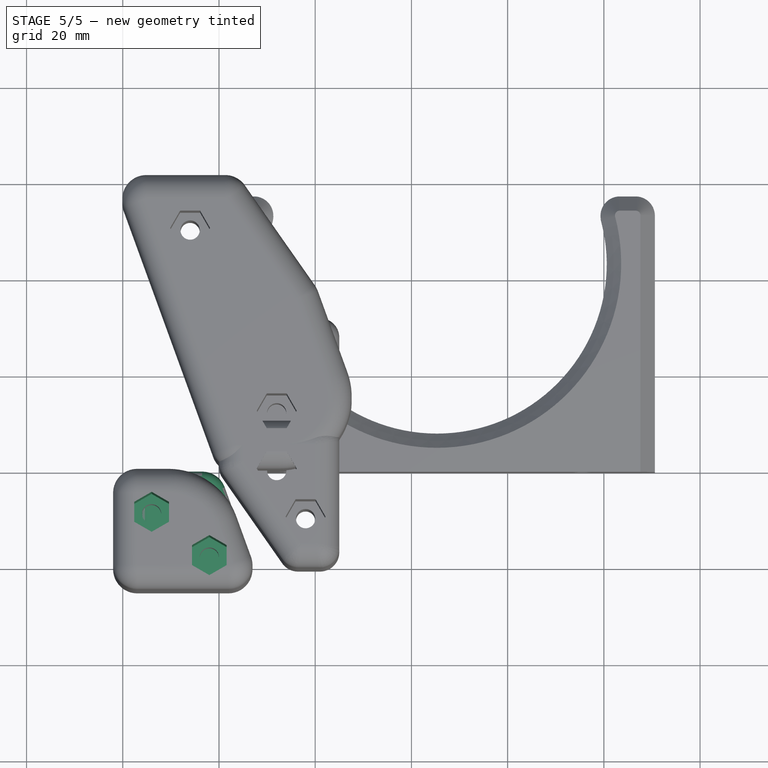
[diagram: stage 5 of 5 — top view after this stage's code; geometry added in this stage tinted green]
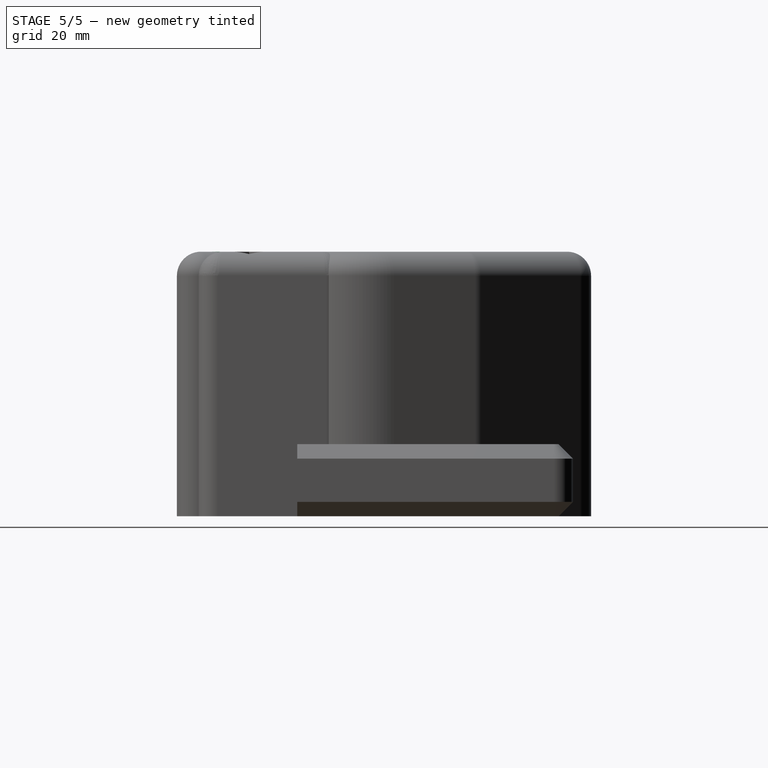
[diagram: stage 5 of 5 — right view after this stage's code; geometry added in this stage tinted green]
FEATURE [Sketcher::SketchObject] Sketch002
  FullyConstrained = true
  MapMode = 5
  Support = -> [XY_Plane002]
  sketch-geometry (5):
    g0: LineSegment StartX=0 StartY=0 StartZ=0 EndX=-17 EndY=0 EndZ=0
    g1: LineSegment StartX=-17 StartY=0 StartZ=0 EndX=-17 EndY=-15 EndZ=0
    g2: LineSegment StartX=-17 StartY=-15 StartZ=0 EndX=-14.2511 EndY=-22.5526 EndZ=0
    g3: LineSegment StartX=-14.2511 StartY=-22.5526 StartZ=0 EndX=8.20848 EndY=-22.5526 EndZ=0
    g4: LineSegment StartX=8.20848 StartY=-22.5526 StartZ=0 EndX=0 EndY=0 EndZ=0
  constraints (14):
    c: Coincident(g-1,g0)
    c: PointOnObject(g0,g-1)
    c: Coincident(g0,g1)
    c: Vertical(g1)
    c: Coincident(g1,g2)
    c: Coincident(g2,g3)
    c: Horizontal(g3)
    c: Coincident(g3,g4)
    c: Coincident(g4,g0)
    c: Angle(g0,g4) = 1.91986
    c: Parallel(g2,g4)
    c: Distance(g4) = 24
    c: DistanceX(g0,g0) = 17
    c: DistanceY(g1,g1) = 15
FEATURE [PartDesign::Pad] Pad002
  Direction = (0,0,1)
  Length = 19.2
  Length2 = 10
  Profile = -> Sketch002
  ReferenceAxis = -> Sketch002 [N_Axis]
  Type = 0
  expr: Length = <<data>>.pad
FEATURE [PartDesign::Fillet] Fillet003
  Base = -> Pad002 [Edge11,Edge8,Edge5,Edge2,Edge1]
  BaseFeature = -> Pad002
  Radius = 5
  SupportTransform = false
  UseAllEdges = false
FEATURE [PartDesign::Fillet] Fillet004
  Base = -> Fillet003 [Face5]
  BaseFeature = -> Fillet003
  Radius = 2
  SupportTransform = false
  UseAllEdges = false
FEATURE [Sketcher::SketchObject] Sketch003
  FullyConstrained = true
  MapMode = 5
  Support = -> [XY_Plane002]
  sketch-geometry (2):
    g0: Circle CenterX=0 CenterY=-17 CenterZ=0 NormalX=0 NormalY=0 NormalZ=1 AngleXU=0 Radius=2
    g1: Circle CenterX=-12 CenterY=-6 CenterZ=0 NormalX=0 NormalY=0 NormalZ=1 AngleXU=0 Radius=2
  constraints (6):
    c: Equal(g0,g1)
    c: Diameter(g0) = 4
    c: PointOnObject(g0,g-2)
    c: DistanceY(g0,g-1) = 17
    c: DistanceY(g1,g-1) = 6
    c: DistanceX(g1,g-1) = 12
FEATURE [PartDesign::Hole] Hole
  BaseFeature = -> Fillet004
  CustomThreadClearance = 0
  Depth = 14.2
  DepthType = 0
  Diameter = 3.322
  DrillForDepth = false
  DrillPoint = 1
  DrillPointAngle = 118
  HoleCutCountersinkAngle = 90
  HoleCutCustomValues = false
  HoleCutDepth = 0
  HoleCutDiameter = 6.1
  HoleCutType = 0
  ModelThread = true
  Profile = -> Sketch003
  Reversed = true
  Tapered = false
  TaperedAngle = 90
  ThreadClass = 0
  ThreadDepth = 14.2
  ThreadDepthType = 0
  ThreadDirection = 0
  ThreadFit = 0
  ThreadSize = 11
  ThreadType = 1
  Threaded = true
  UseCustomThreadClearance = false
  expr: Depth = <<data>>.pad - 5 mm
FEATURE [Sketcher::SketchObject] Sketch005
  ExternalGeometry = -> [Hole001]
  FullyConstrained = true
  MapMode = 5
  Support = -> [XY_Plane]
  expr: Constraints[39] = <<data>>.hex
  sketch-geometry (14):
    g0: LineSegment StartX=1.6 StartY=-15.9215 StartZ=0 EndX=-2 EndY=-13.8431 EndZ=0
    g1: LineSegment StartX=-2 StartY=-13.8431 StartZ=0 EndX=-5.6 EndY=-15.9215 EndZ=0
    g2: LineSegment StartX=-5.6 StartY=-15.9215 StartZ=0 EndX=-5.6 EndY=-20.0785 EndZ=0
    g3: LineSegment StartX=-5.6 StartY=-20.0785 StartZ=0 EndX=-2 EndY=-22.1569 EndZ=0
    g4: LineSegment StartX=-2 StartY=-22.1569 StartZ=0 EndX=1.6 EndY=-20.0785 EndZ=0
    g5: LineSegment StartX=1.6 StartY=-20.0785 StartZ=0 EndX=1.6 EndY=-15.9215 EndZ=0
    g6: Circle CenterX=-2 CenterY=-18 CenterZ=0 NormalX=0 NormalY=0 NormalZ=1 AngleXU=0 Radius=4.15692
    g7: LineSegment StartX=-10.4 StartY=-6.92154 StartZ=0 EndX=-14 EndY=-4.84308 EndZ=0
    g8: LineSegment StartX=-14 StartY=-4.84308 StartZ=0 EndX=-17.6 EndY=-6.92154 EndZ=0
    g9: LineSegment StartX=-17.6 StartY=-6.92154 StartZ=0 EndX=-17.6 EndY=-11.0785 EndZ=0
    g10: LineSegment StartX=-17.6 StartY=-11.0785 StartZ=0 EndX=-14 EndY=-13.1569 EndZ=0
    g11: LineSegment StartX=-14 StartY=-13.1569 StartZ=0 EndX=-10.4 EndY=-11.0785 EndZ=0
    g12: LineSegment StartX=-10.4 StartY=-11.0785 StartZ=0 EndX=-10.4 EndY=-6.92154 EndZ=0
    g13: Circle CenterX=-14 CenterY=-9 CenterZ=0 NormalX=0 NormalY=0 NormalZ=1 AngleXU=0 Radius=4.15692
  constraints (32):
    c: Coincident(g0,g1)
    c: Coincident(g1,g2)
    c: Coincident(g2,g3)
    c: Coincident(g3,g4)
    c: Coincident(g4,g5)
    c: Coincident(g5,g0)
    c: Equal(g0, g1-g5) x5
    c: PointOnObject(g0,g6)
    c: PointOnObject(g1,g6)
    c: PointOnObject(g2,g6)
    c: PointOnObject(g3,g6)
    c: PointOnObject(g4,g6)
    c: PointOnObject(g5,g6)
    c: Coincident(g6,g-3)
    c: Coincident(g7,g8)
    c: Coincident(g8,g9)
    c: Coincident(g9,g10)
    c: Coincident(g10,g11)
    c: Coincident(g11,g12)
    c: Coincident(g12,g7)
    c: Equal(g7, g8-g12) x5
    c: PointOnObject(g7,g13)
    c: PointOnObject(g8,g13)
    c: PointOnObject(g9,g13)
    c: PointOnObject(g10,g13)
    c: PointOnObject(g11,g13)
    c: PointOnObject(g12,g13)
    c: Coincident(g13,g-4)
    c: Vertical(g9)
    c: Vertical(g5)
    c: Equal(g9,g2)
    c: DistanceX(g8,g7) = 7.2
FEATURE [PartDesign::Pocket] Pocket
  BaseFeature = -> Hole001
  Direction = (0,0,-1)
  Length = 100
  Length2 = -30
  Profile = -> Sketch005
  ReferenceAxis = -> Sketch005 [N_Axis]
  Reversed = true
  Type = 4
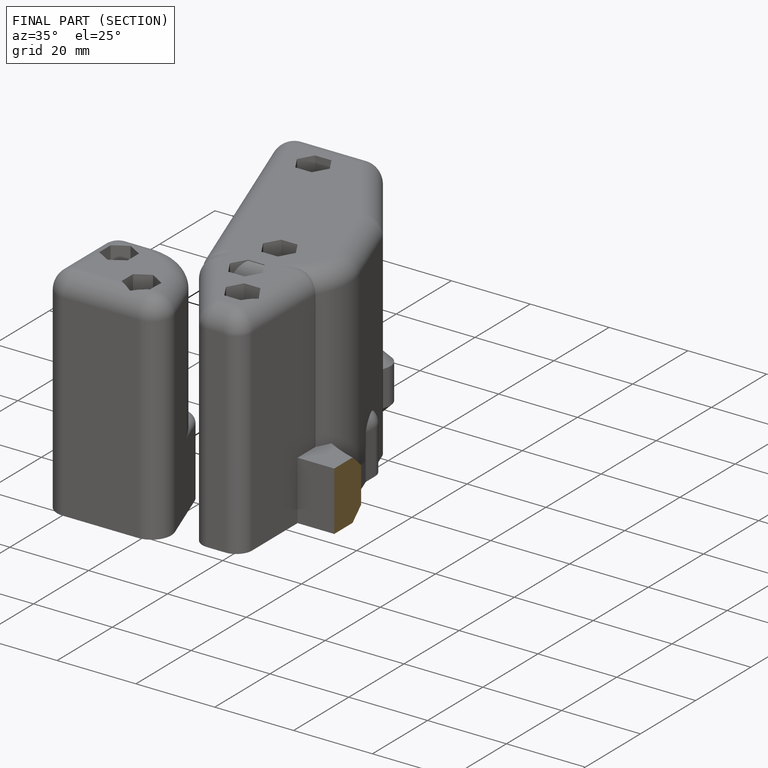
[diagram: finished part — half-section view (interior)]
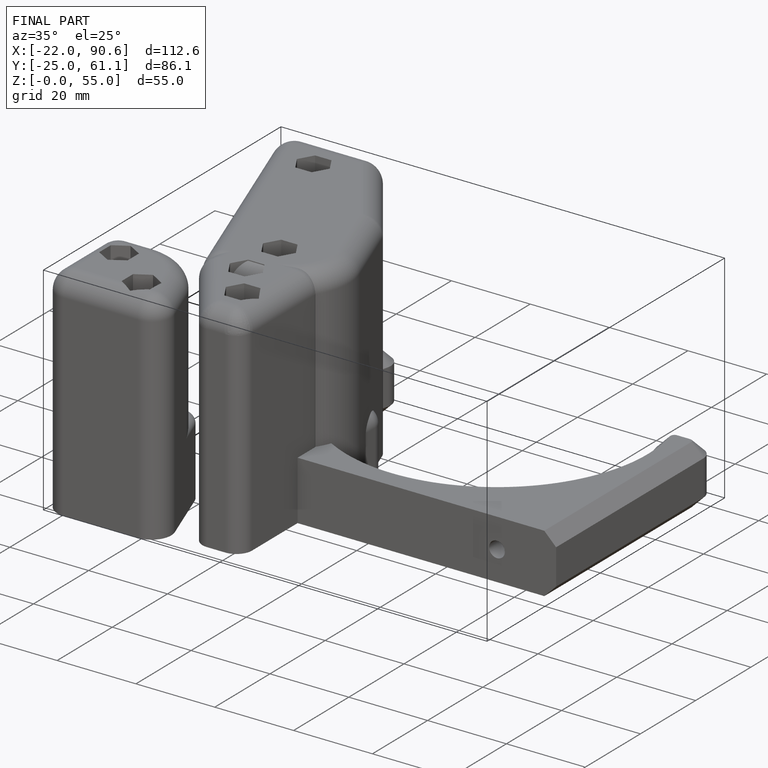
[diagram: finished part — iso view with bounding-box wireframe]
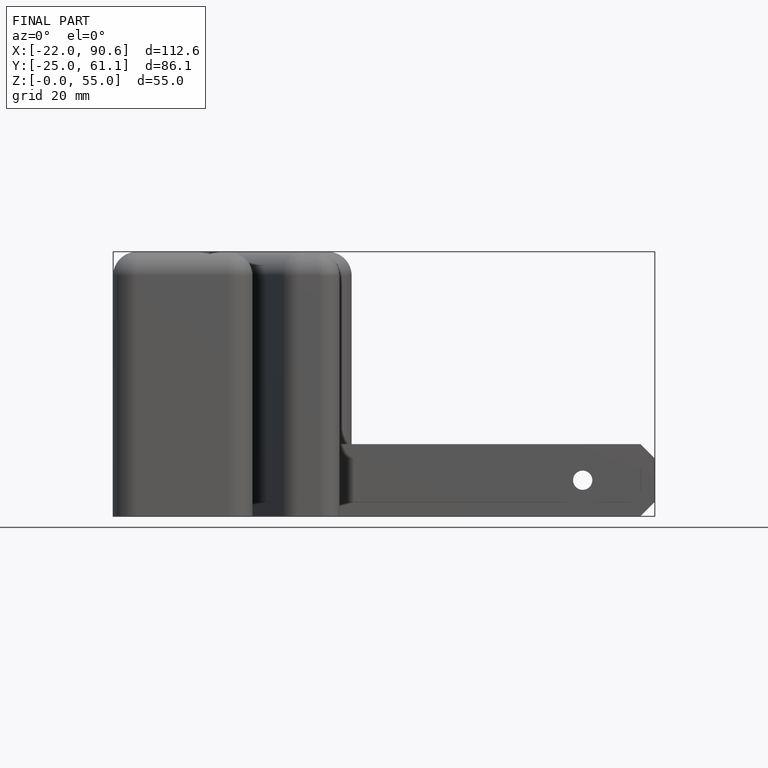
[diagram: finished part — front view with bounding-box wireframe]
